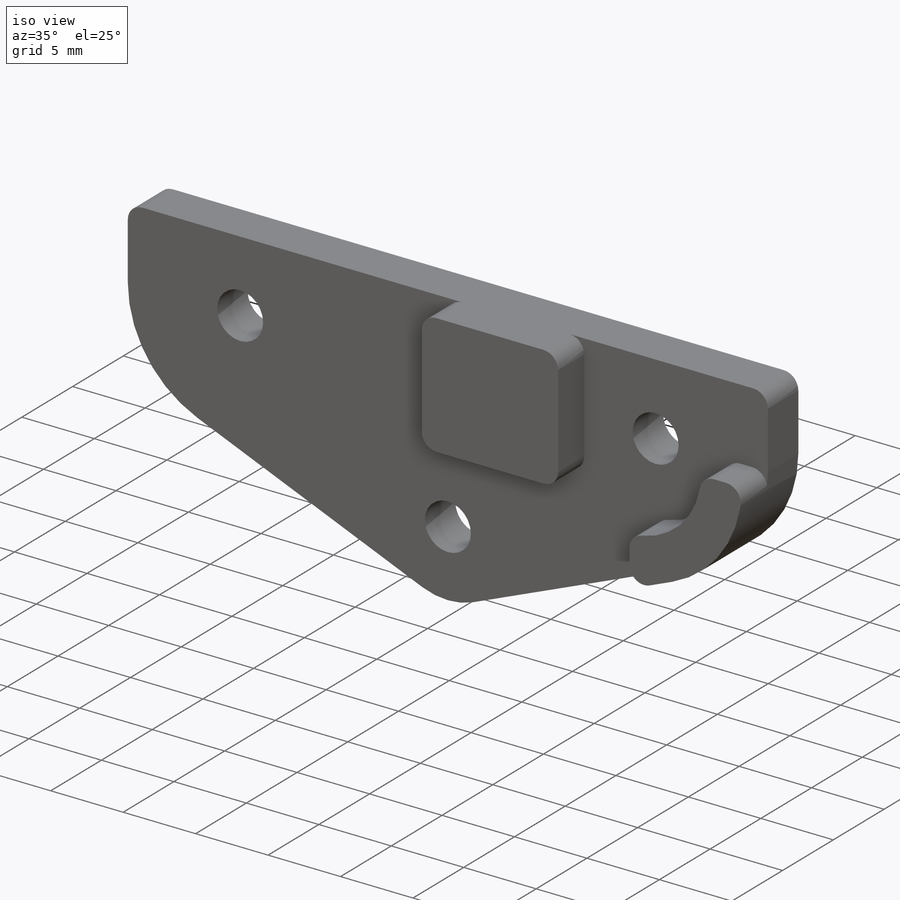
[diagram: iso view]
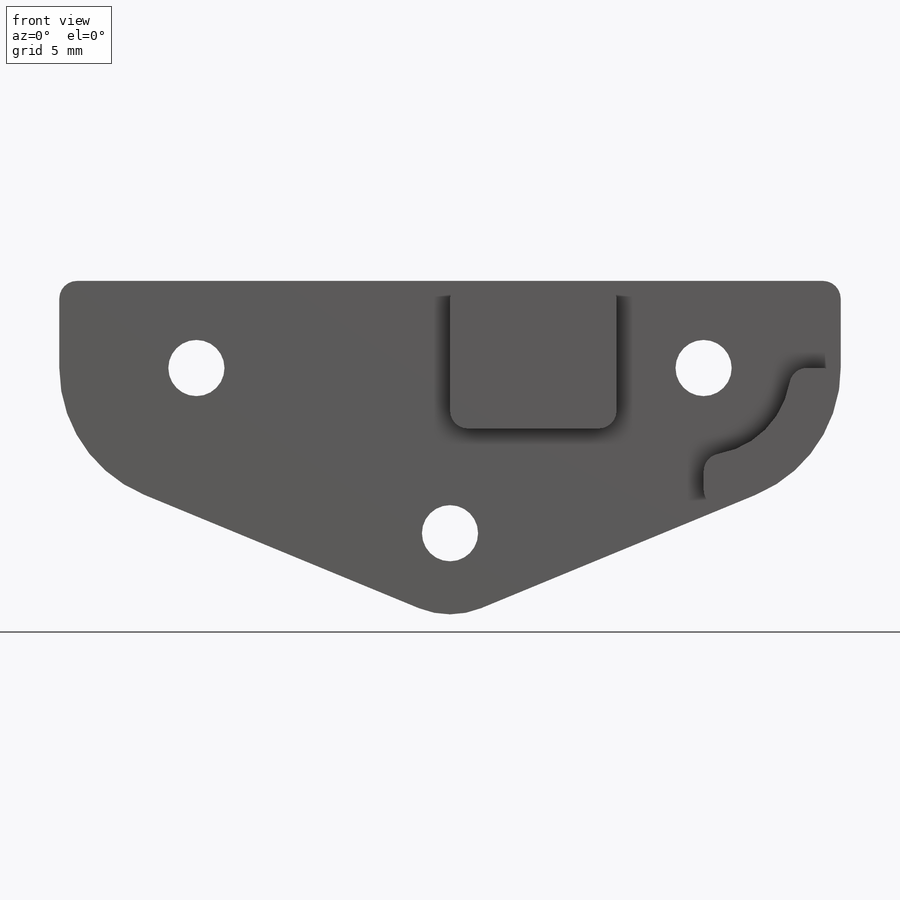
[diagram: front view]
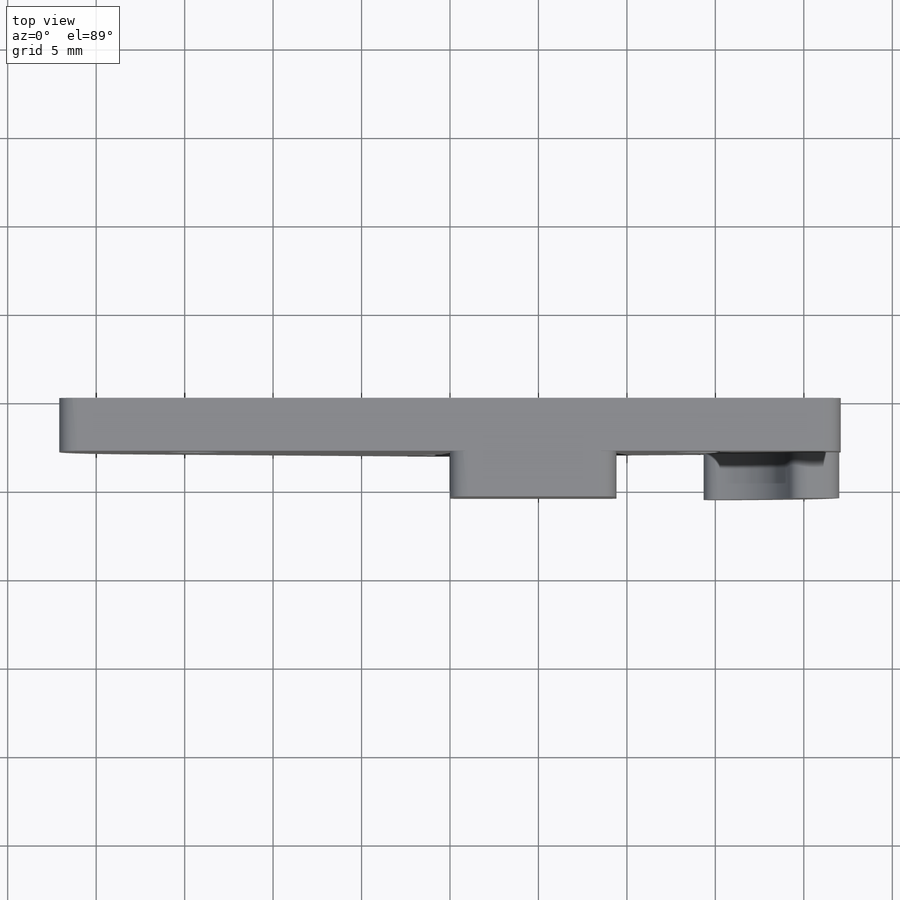
[diagram: top view]
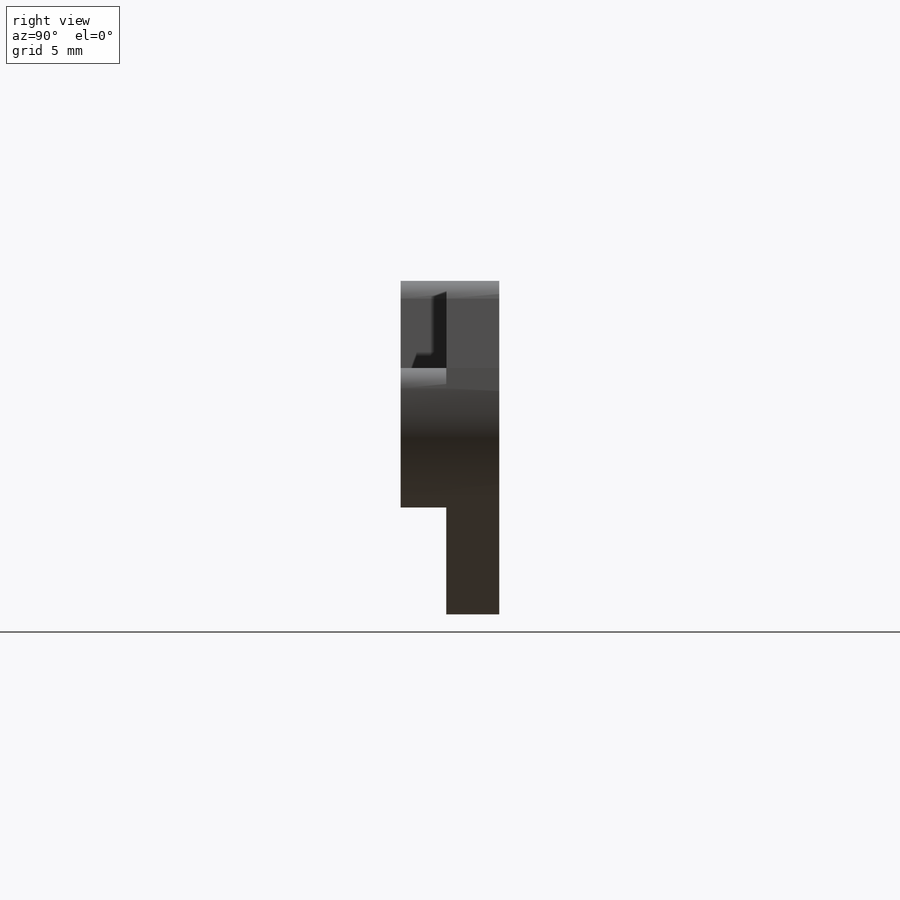
[diagram: right view]
SOLIDWORKS PART (.sldprt)
format: sldprt  version: not decoded by parser v0  size: 224,768 bytes
history: native  units: mm
features: sketch x2, extrude x2, material x1, fillet x1 + 1 further entry (+17 scaffold rows collapsed; 3 parser-record rows omitted)
feature tree (27):
  scaffold x17  (default folders/planes/origin — collapsed)
  material  "ABS"
  "params_print"
  parser-record x3  (decoder bookkeeping rows leaked as tree rows — omitted from the tree; the rows remain in map.json)
  sketch  "Sketch1"  dims[c1.D2=9.5mm c1.D3=3.175mm c1.D4=3.175mm c1.D5=9.9mm c1.D6=9.85mm c1.D1=28.67mm c2.D4=3.0mm c2.D5=3.0mm]
  extrude  "Plate Body"  Depth=3mm
  sketch  "Sketch2"  dims[D1=1.5mm]
  extrude  "Flanges"  Depth=2.575mm
  fillet  "Contouring"  Radius=1mm
decode coverage: 5 of 5 modeling features carry decoded parameters; 1 rows unclassified (native names shown)
note: suppression state not decoded; provenance and decode notes live in map.json
